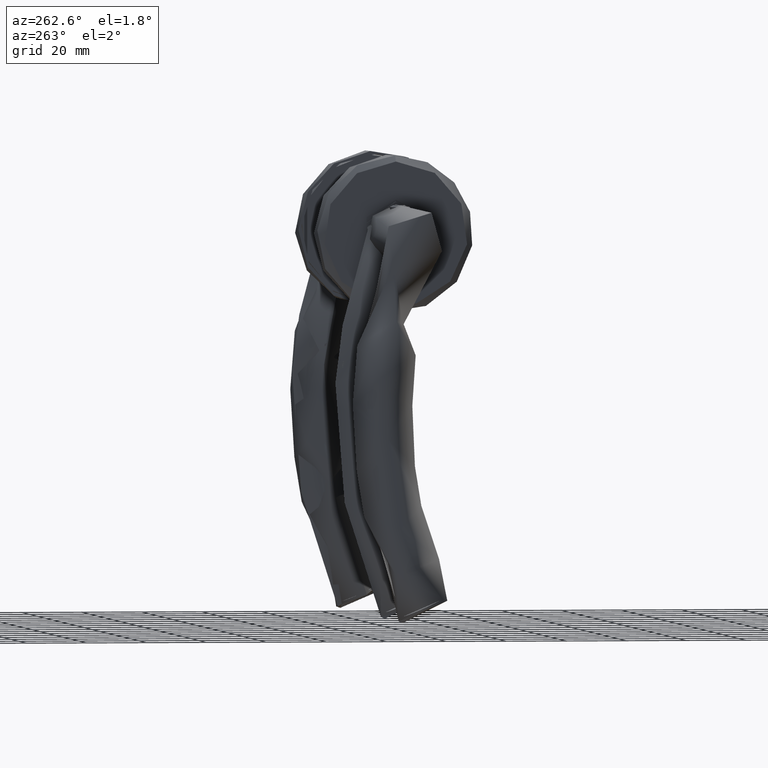
[diagram: clean part render]
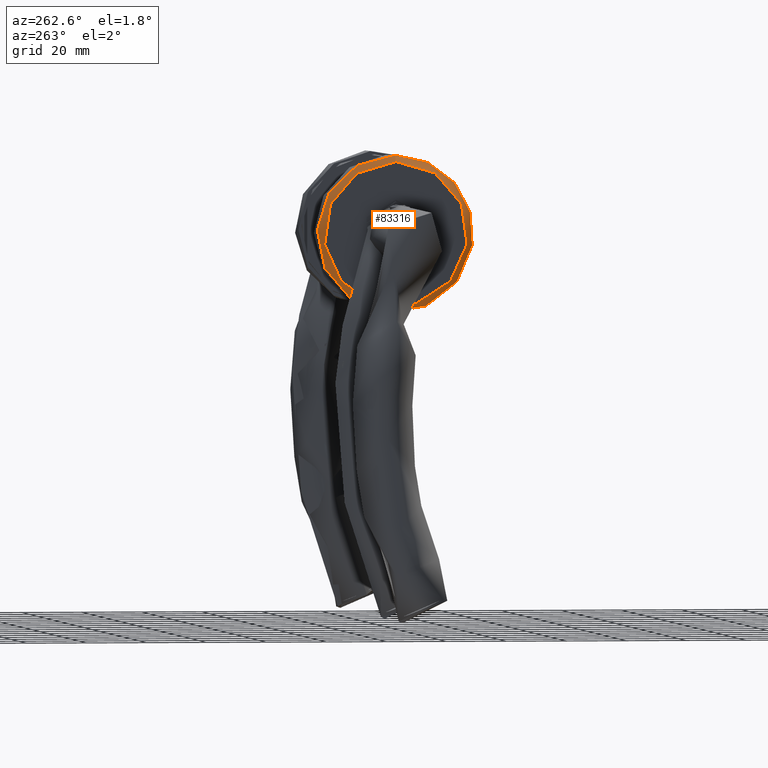
[diagram: same view with one face highlighted and labeled with its STEP entity id]
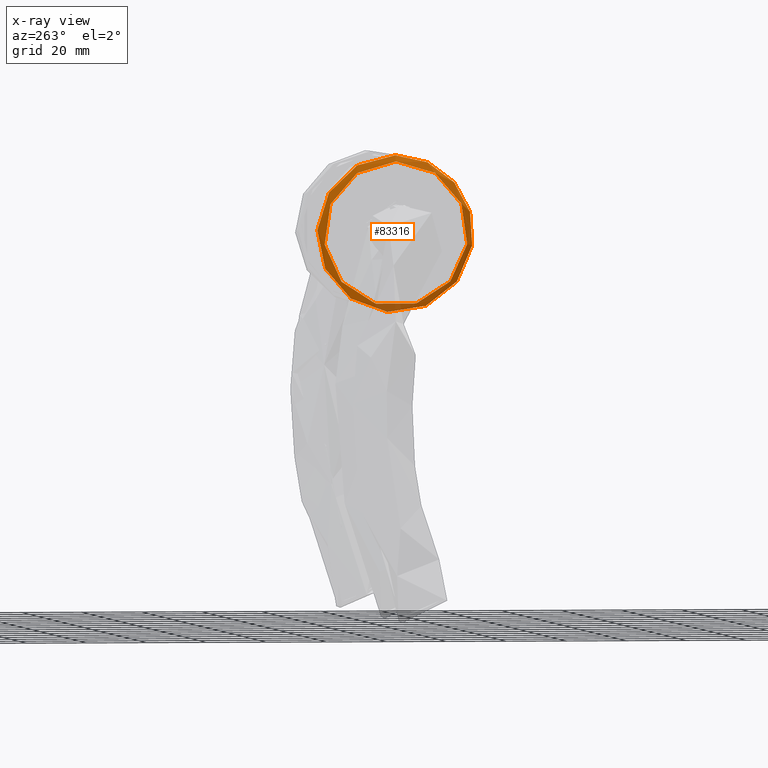
[diagram: x-ray of the same camera — body ghosted, the highlighted face saturated]
A machine part, auxiliary view. The second image highlights one B-rep face of the part: STEP entity #83316.
The next image is the same camera in x-ray: the body ghosted, the highlighted face saturated — about 8% of this face is hidden behind the body in this view.
In plain terms, the highlighted toroidal blend (fillet) surface has major radius 24 mm and minor (blend) radius 2 mm.
Its self-contained STEP definition (entity closure, byte-faithful):
#14983 = EDGE_CURVE ( 'NONE', #78128, #78128, #74152, .T. ) ;
#16129 = ORIENTED_EDGE ( 'NONE', *, *, #14983, .F. ) ;
#19486 = CARTESIAN_POINT ( 'NONE',  ( 0.0000000000000000000, 0.0000000000000000000, 10.50000000000000000 ) ) ;
#19936 = AXIS2_PLACEMENT_3D ( 'NONE', #35279, #61945, #21781 ) ;
#21781 = DIRECTION ( 'NONE',  ( 1.000000000000000000, 0.0000000000000000000, 0.0000000000000000000 ) ) ;
#24445 = EDGE_LOOP ( 'NONE', ( #38713 ) ) ;
#25960 = DIRECTION ( 'NONE',  ( 0.0000000000000000000, 0.0000000000000000000, 1.000000000000000000 ) ) ;
#29532 = CARTESIAN_POINT ( 'NONE',  ( 26.00000000000000400, 0.0000000000000000000, 8.500000000000000000 ) ) ;
#35279 = CARTESIAN_POINT ( 'NONE',  ( 0.0000000000000000000, 0.0000000000000000000, 8.500000000000000000 ) ) ;
#38713 = ORIENTED_EDGE ( 'NONE', *, *, #65220, .F. ) ;
#42489 = VERTEX_POINT ( 'NONE', #29532 ) ;
#44428 = CIRCLE ( 'NONE', #68462, 26.00000000000000400 ) ;
#46284 = AXIS2_PLACEMENT_3D ( 'NONE', #19486, #25960, #85468 ) ;
#46293 = DIRECTION ( 'NONE',  ( 1.000000000000000000, 0.0000000000000000000, 0.0000000000000000000 ) ) ;
#53658 = CARTESIAN_POINT ( 'NONE',  ( 24.00000000000000000, 0.0000000000000000000, 10.50000000000000000 ) ) ;
#55343 = TOROIDAL_SURFACE ( 'NONE', #19936, 24.00000000000000000, 2.000000000000000000 ) ;
#57427 = FACE_OUTER_BOUND ( 'NONE', #59659, .T. ) ;
#59659 = EDGE_LOOP ( 'NONE', ( #16129 ) ) ;
#61945 = DIRECTION ( 'NONE',  ( 0.0000000000000000000, 0.0000000000000000000, 1.000000000000000000 ) ) ;
#65220 = EDGE_CURVE ( 'NONE', #42489, #42489, #44428, .T. ) ;
#68462 = AXIS2_PLACEMENT_3D ( 'NONE', #72409, #79725, #46293 ) ;
#72409 = CARTESIAN_POINT ( 'NONE',  ( 0.0000000000000000000, 0.0000000000000000000, 8.500000000000000000 ) ) ;
#74152 = CIRCLE ( 'NONE', #46284, 24.00000000000000000 ) ;
#78128 = VERTEX_POINT ( 'NONE', #53658 ) ;
#79725 = DIRECTION ( 'NONE',  ( -0.0000000000000000000, -0.0000000000000000000, -1.000000000000000000 ) ) ;
#80488 = FACE_OUTER_BOUND ( 'NONE', #24445, .T. ) ;
#83316 = ADVANCED_FACE ( 'NONE', ( #80488, #57427 ), #55343, .T. ) ;
#85468 = DIRECTION ( 'NONE',  ( 1.000000000000000000, 0.0000000000000000000, 0.0000000000000000000 ) ) ;